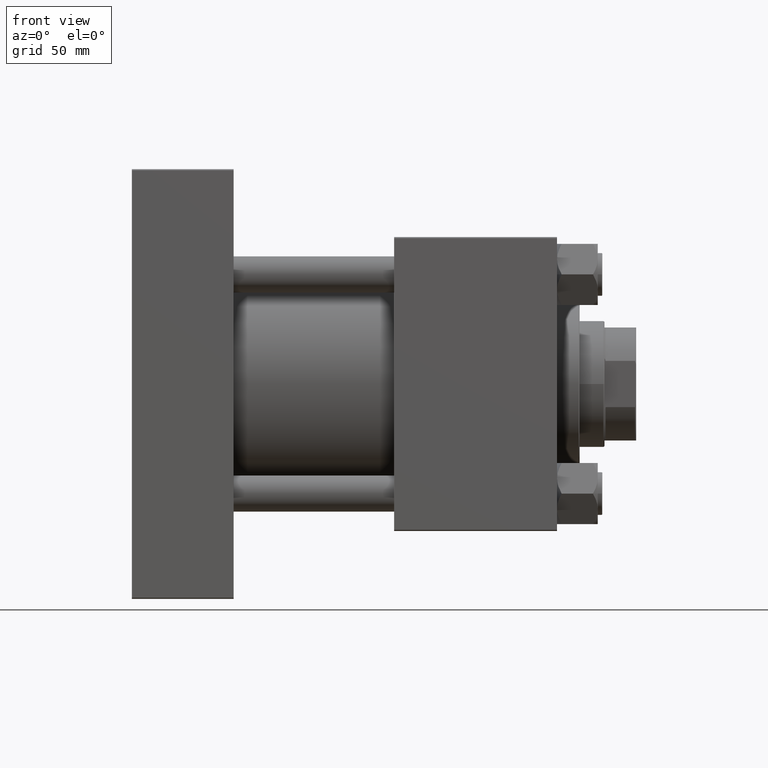
[diagram: clean part render]
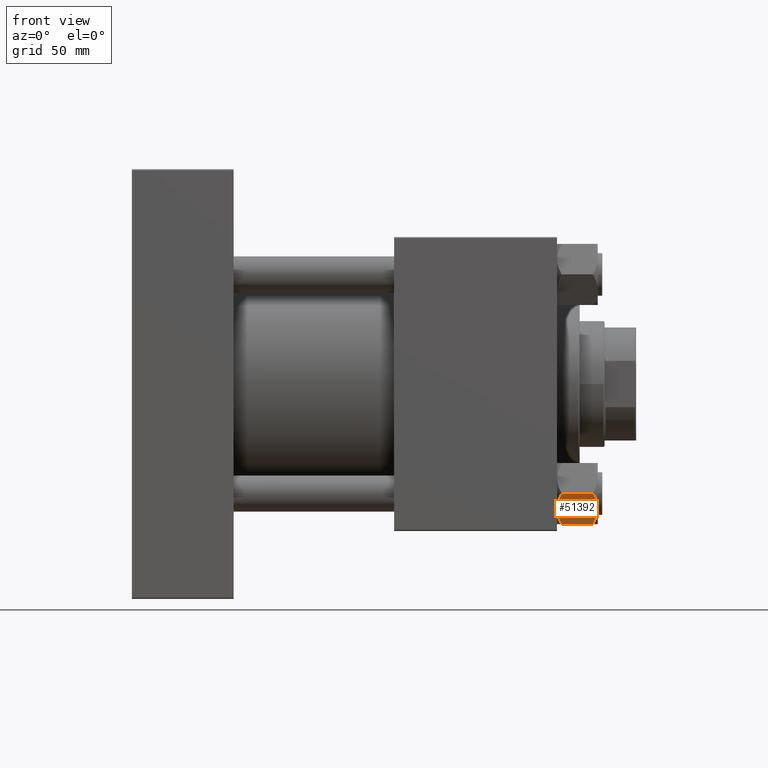
[diagram: same view with one face highlighted and labeled with its STEP entity id]
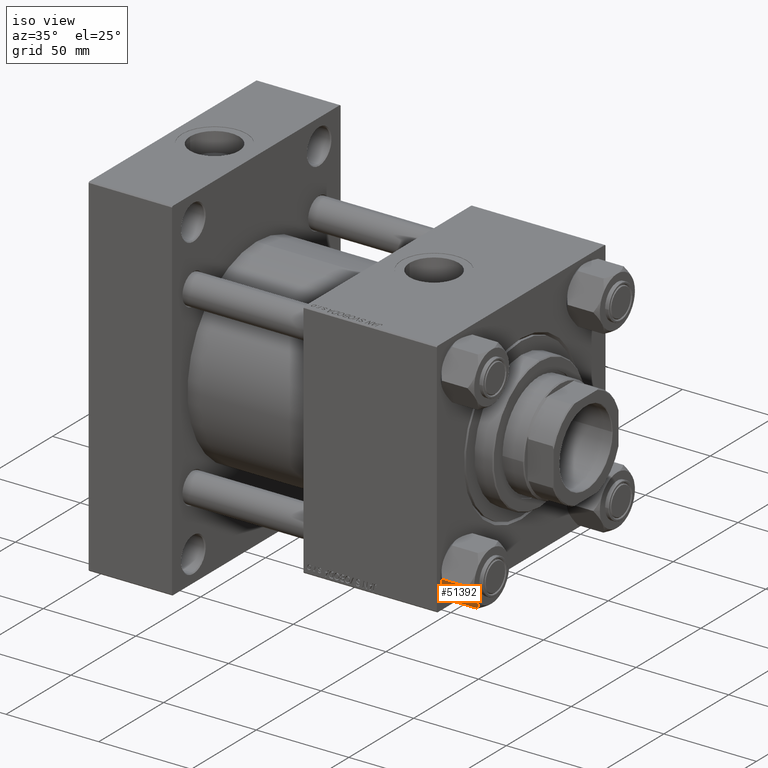
[diagram: same view with one face highlighted and labeled with its STEP entity id]
A machine part, front view. The second image highlights one B-rep face of the part: STEP entity #51392.
A second angle (iso view) of the same face is appended — the face is thin or edge-on in the first view.
In plain terms, the highlighted planar face has unit normal (-0, 0.866, 0.5).
Its self-contained STEP definition (entity closure, byte-faithful):
#259 = CARTESIAN_POINT ( 'NONE',  ( 15.22736220980734778, 0.6800686015852424049, -16.29368822085855584 ) ) ;
#1029 = CARTESIAN_POINT ( 'NONE',  ( 11.04378428799595468, 7.926238119586002995, -17.94910618364697541 ) ) ;
#2213 = CARTESIAN_POINT ( 'NONE',  ( 11.71499999999999453, 6.763658403556462417, -18.00000000000000000 ) ) ;
#2328 = CARTESIAN_POINT ( 'NONE',  ( 7.810000000000001386, 13.52731680711293905, -16.00000000000000000 ) ) ;
#2432 = CARTESIAN_POINT ( 'NONE',  ( 7.810000000000001386, 13.52731680711293905, -16.00000000000000000 ) ) ;
#2516 = EDGE_CURVE ( 'NONE', #21256, #12310, #32760, .T. ) ;
#2767 = ORIENTED_EDGE ( 'NONE', *, *, #14109, .F. ) ;
#2850 = LINE ( 'NONE', #2328, #45934 ) ;
#4265 = CARTESIAN_POINT ( 'NONE',  ( 8.502393313253767460, 12.32805640973646710, -16.58801072835993295 ) ) ;
#4447 = ORIENTED_EDGE ( 'NONE', *, *, #50735, .F. ) ;
#4456 = VERTEX_POINT ( 'NONE', #2213 ) ;
#4642 = CARTESIAN_POINT ( 'NONE',  ( 12.04818928091285990, 6.186557640478066666, -6.520459627963604010E-15 ) ) ;
#4982 = EDGE_CURVE ( 'NONE', #24308, #51121, #47886, .T. ) ;
#6009 = AXIS2_PLACEMENT_3D ( 'NONE', #44197, #15227, #31438 ) ;
#6211 = EDGE_CURVE ( 'NONE', #40071, #8293, #47104, .T. ) ;
#7618 = CARTESIAN_POINT ( 'NONE',  ( 11.05297796109638320, 7.910314210667882762, -6.479802046495397594E-15 ) ) ;
#8271 = CARTESIAN_POINT ( 'NONE',  ( 10.06459418565413166, 9.622245127110598872, -17.61639331488792948 ) ) ;
#8293 = VERTEX_POINT ( 'NONE', #19513 ) ;
#8398 = CARTESIAN_POINT ( 'NONE',  ( 9.124083218049248600, 11.25125790807802062, -0.9473872146228176083 ) ) ;
#8560 = VECTOR ( 'NONE', #48314, 1000.000000000000000 ) ;
#10006 = CARTESIAN_POINT ( 'NONE',  ( 15.62000000000000455, -1.379485931020374819E-15, -1.999999999999998224 ) ) ;
#10239 = ORIENTED_EDGE ( 'NONE', *, *, #4982, .F. ) ;
#11957 = EDGE_CURVE ( 'NONE', #40071, #12918, #51027, .T. ) ;
#12310 = VERTEX_POINT ( 'NONE', #26518 ) ;
#12888 = CARTESIAN_POINT ( 'NONE',  ( 11.71499999999999808, 6.763658403556465082, 0.000000000000000000 ) ) ;
#12918 = VERTEX_POINT ( 'NONE', #45159 ) ;
#13150 = CARTESIAN_POINT ( 'NONE',  ( 12.38621571200405569, 5.601078687526934274, -0.05089381635302299423 ) ) ;
#13645 = ORIENTED_EDGE ( 'NONE', *, *, #16793, .F. ) ;
#14109 = EDGE_CURVE ( 'NONE', #51121, #12918, #27440, .T. ) ;
#14532 = ORIENTED_EDGE ( 'NONE', *, *, #6211, .F. ) ;
#14618 = CARTESIAN_POINT ( 'NONE',  ( 7.810000000000001386, 13.52731680711293905, -18.00000000000000000 ) ) ;
#15227 = DIRECTION ( 'NONE',  ( -0.8660254037844387076, -0.4999999999999999445, 0.000000000000000000 ) ) ;
#15451 = CARTESIAN_POINT ( 'NONE',  ( 13.99051971937273464, 2.822342635978018599, -17.26828031537187513 ) ) ;
#15758 = FACE_OUTER_BOUND ( 'NONE', #18000, .T. ) ;
#16793 = EDGE_CURVE ( 'NONE', #8293, #4456, #43897, .T. ) ;
#17135 = CARTESIAN_POINT ( 'NONE',  ( 15.52647173767731736, 0.1619957022865213259, -2.000000000000000000 ) ) ;
#18000 = EDGE_LOOP ( 'NONE', ( #14532, #48898, #2767, #10239, #45437, #26534, #35245, #4447, #38155, #13645 ) ) ;
#18871 = DIRECTION ( 'NONE',  ( -0.000000000000000000, -0.000000000000000000, 1.000000000000000000 ) ) ;
#19513 = CARTESIAN_POINT ( 'NONE',  ( 7.903528262322689457, 13.36532110482641045, -16.00000000000000000 ) ) ;
#19765 = CARTESIAN_POINT ( 'NONE',  ( 7.810000000000001386, 13.52731680711293905, -1.999999999999998224 ) ) ;
#21256 = VERTEX_POINT ( 'NONE', #10006 ) ;
#21530 = CARTESIAN_POINT ( 'NONE',  ( 15.52647173767731736, 0.1619957022865213259, -16.00000000000000000 ) ) ;
#22213 = CARTESIAN_POINT ( 'NONE',  ( 7.903528262322689457, 13.36532110482641045, -2.000000000000000000 ) ) ;
#22716 = B_SPLINE_CURVE_WITH_KNOTS ( 'NONE', 3,
 ( #31395, #35665, #47618, #15451, #31660, #48927, #259, #21530 ),
 .UNSPECIFIED., .F., .F.,
 ( 4, 2, 2, 4 ),
 ( 0.007890825462474394467, 0.01181022244528549814, 0.01376992093669104911, 0.01572961942809660008 ),
 .UNSPECIFIED. ) ;
#23717 = CARTESIAN_POINT ( 'NONE',  ( 7.810000000000001386, 13.52731680711293905, -1.999999999999998224 ) ) ;
#24124 = VERTEX_POINT ( 'NONE', #26232 ) ;
#24308 = VERTEX_POINT ( 'NONE', #46826 ) ;
#24983 = CARTESIAN_POINT ( 'NONE',  ( 11.38181071908714692, 7.340759166634869715, -17.99999999999998224 ) ) ;
#25112 = CARTESIAN_POINT ( 'NONE',  ( 13.04337073483127973, 4.462852799541090043, -0.2430846701013048838 ) ) ;
#25251 = CARTESIAN_POINT ( 'NONE',  ( 11.71499999999999453, 6.763658403556462417, -18.00000000000000000 ) ) ;
#25897 = CARTESIAN_POINT ( 'NONE',  ( 14.92760668674624469, 1.199260397376465725, -1.411989271640069710 ) ) ;
#26232 = CARTESIAN_POINT ( 'NONE',  ( 15.62000000000000455, -1.379485931020374819E-15, -16.00000000000000000 ) ) ;
#26518 = CARTESIAN_POINT ( 'NONE',  ( 15.52647173767731736, 0.1619957022865213259, -2.000000000000000000 ) ) ;
#26534 = ORIENTED_EDGE ( 'NONE', *, *, #2516, .F. ) ;
#27440 = LINE ( 'NONE', #23717, #43117 ) ;
#27589 = LINE ( 'NONE', #28641, #8560 ) ;
#27609 = VECTOR ( 'NONE', #35980, 999.9999999999998863 ) ;
#27705 = DIRECTION ( 'NONE',  ( -0.4999999999999999445, 0.8660254037844387076, 0.000000000000000000 ) ) ;
#28080 = CARTESIAN_POINT ( 'NONE',  ( 8.506059550806631009, 12.32170630002228506, -1.434462921875004460 ) ) ;
#28641 = CARTESIAN_POINT ( 'NONE',  ( 15.62000000000000455, -1.379485931020374819E-15, -18.00000000000000000 ) ) ;
#28981 = CARTESIAN_POINT ( 'NONE',  ( 7.903528262322689457, 13.36532110482641045, -16.00000000000000000 ) ) ;
#30031 = CARTESIAN_POINT ( 'NONE',  ( 7.810000000000000497, 13.52731680711293905, -16.00000000000000000 ) ) ;
#31395 = CARTESIAN_POINT ( 'NONE',  ( 11.71499999999999453, 6.763658403556462417, -18.00000000000000000 ) ) ;
#31438 = DIRECTION ( 'NONE',  ( 0.4999999999999998890, -0.8660254037844385966, 0.000000000000000000 ) ) ;
#31536 = VERTEX_POINT ( 'NONE', #39207 ) ;
#31660 = CARTESIAN_POINT ( 'NONE',  ( 14.30591678195075467, 2.276058899034909544, -17.05261278537717828 ) ) ;
#31788 = CARTESIAN_POINT ( 'NONE',  ( 11.71499999999999808, 6.763658403556465082, 0.000000000000000000 ) ) ;
#32055 = CARTESIAN_POINT ( 'NONE',  ( 8.202637790192657263, 12.84724820552769486, -1.706311779141446383 ) ) ;
#32072 = VECTOR ( 'NONE', #18871, 1000.000000000000000 ) ;
#32760 = LINE ( 'NONE', #19765, #27609 ) ;
#34890 = DIRECTION ( 'NONE',  ( 0.4999999999999999445, -0.8660254037844387076, 0.000000000000000000 ) ) ;
#35245 = ORIENTED_EDGE ( 'NONE', *, *, #50877, .F. ) ;
#35665 = CARTESIAN_POINT ( 'NONE',  ( 12.37702203890362362, 5.617002596445057172, -17.99999999999999645 ) ) ;
#35980 = DIRECTION ( 'NONE',  ( -0.4999999999999999445, 0.8660254037844387076, 0.000000000000000000 ) ) ;
#36575 = CARTESIAN_POINT ( 'NONE',  ( 7.903528262322689457, 13.36532110482641045, -2.000000000000000000 ) ) ;
#37214 = CARTESIAN_POINT ( 'NONE',  ( 10.38662926516872886, 9.064464007571846338, -17.75691532989869614 ) ) ;
#38155 = ORIENTED_EDGE ( 'NONE', *, *, #39209, .F. ) ;
#39207 = CARTESIAN_POINT ( 'NONE',  ( 15.52647173767731736, 0.1619957022865213259, -16.00000000000000000 ) ) ;
#39209 = EDGE_CURVE ( 'NONE', #4456, #31536, #22716, .T. ) ;
#40024 = B_SPLINE_CURVE_WITH_KNOTS ( 'NONE', 3,
 ( #17135, #25897, #49300, #46098, #25112, #13150, #4642, #12888 ),
 .UNSPECIFIED., .F., .F.,
 ( 4, 2, 2, 4 ),
 ( 4.472842642021966394E-07, 0.003945636373369309190, 0.005918230917921864405, 0.007890825462474418753 ),
 .UNSPECIFIED. ) ;
#40071 = VERTEX_POINT ( 'NONE', #30031 ) ;
#41200 = CARTESIAN_POINT ( 'NONE',  ( 9.114548888011798411, 11.26777185211902221, -17.08577173959729478 ) ) ;
#43117 = VECTOR ( 'NONE', #27705, 999.9999999999998863 ) ;
#43897 = B_SPLINE_CURVE_WITH_KNOTS ( 'NONE', 3,
 ( #28981, #4265, #41200, #8271, #37214, #1029, #24983, #25251 ),
 .UNSPECIFIED., .F., .F.,
 ( 4, 2, 2, 4 ),
 ( 4.472842641813524291E-07, 0.003945636373369291842, 0.005918230917921843588, 0.007890825462474394467 ),
 .UNSPECIFIED. ) ;
#44197 = CARTESIAN_POINT ( 'NONE',  ( 7.810000000000001386, 13.52731680711293905, -18.00000000000000000 ) ) ;
#44542 = CARTESIAN_POINT ( 'NONE',  ( 9.439480280627266851, 10.70497417113491245, -0.7317196846281172062 ) ) ;
#45159 = CARTESIAN_POINT ( 'NONE',  ( 7.810000000000000497, 13.52731680711293905, -1.999999999999998224 ) ) ;
#45437 = ORIENTED_EDGE ( 'NONE', *, *, #52108, .F. ) ;
#45934 = VECTOR ( 'NONE', #46994, 999.9999999999998863 ) ;
#46098 = CARTESIAN_POINT ( 'NONE',  ( 13.36540581434586628, 3.905071680002331735, -0.3836066851120656374 ) ) ;
#46826 = CARTESIAN_POINT ( 'NONE',  ( 11.71499999999999808, 6.763658403556465082, 0.000000000000000000 ) ) ;
#46994 = DIRECTION ( 'NONE',  ( 0.4999999999999999445, -0.8660254037844387076, 0.000000000000000000 ) ) ;
#47104 = LINE ( 'NONE', #2432, #49632 ) ;
#47618 = CARTESIAN_POINT ( 'NONE',  ( 13.02784502466562877, 4.489744118371592485, -17.80281335400753662 ) ) ;
#47886 = B_SPLINE_CURVE_WITH_KNOTS ( 'NONE', 3,
 ( #31788, #7618, #52509, #44542, #8398, #28080, #32055, #36575 ),
 .UNSPECIFIED., .F., .F.,
 ( 4, 2, 2, 4 ),
 ( 0.007890825462474418753, 0.01181022244528552589, 0.01376992093669107686, 0.01572961942809662783 ),
 .UNSPECIFIED. ) ;
#48314 = DIRECTION ( 'NONE',  ( -0.000000000000000000, -0.000000000000000000, 1.000000000000000000 ) ) ;
#48898 = ORIENTED_EDGE ( 'NONE', *, *, #11957, .T. ) ;
#48927 = CARTESIAN_POINT ( 'NONE',  ( 14.92394044919337937, 1.205610507090647987, -16.56553707812500065 ) ) ;
#49300 = CARTESIAN_POINT ( 'NONE',  ( 14.31545111198821019, 2.259544954993908394, -0.9142282604026981119 ) ) ;
#49632 = VECTOR ( 'NONE', #34890, 999.9999999999998863 ) ;
#50735 = EDGE_CURVE ( 'NONE', #31536, #24124, #2850, .T. ) ;
#50877 = EDGE_CURVE ( 'NONE', #24124, #21256, #27589, .T. ) ;
#51027 = LINE ( 'NONE', #14618, #32072 ) ;
#51121 = VERTEX_POINT ( 'NONE', #22213 ) ;
#51392 = ADVANCED_FACE ( 'NONE', ( #15758 ), #52431, .F. ) ;
#52108 = EDGE_CURVE ( 'NONE', #12310, #24308, #40024, .T. ) ;
#52431 = PLANE ( 'NONE',  #6009 ) ;
#52509 = CARTESIAN_POINT ( 'NONE',  ( 10.40215497533438338, 9.037572688741340343, -0.1971866459924613291 ) ) ;